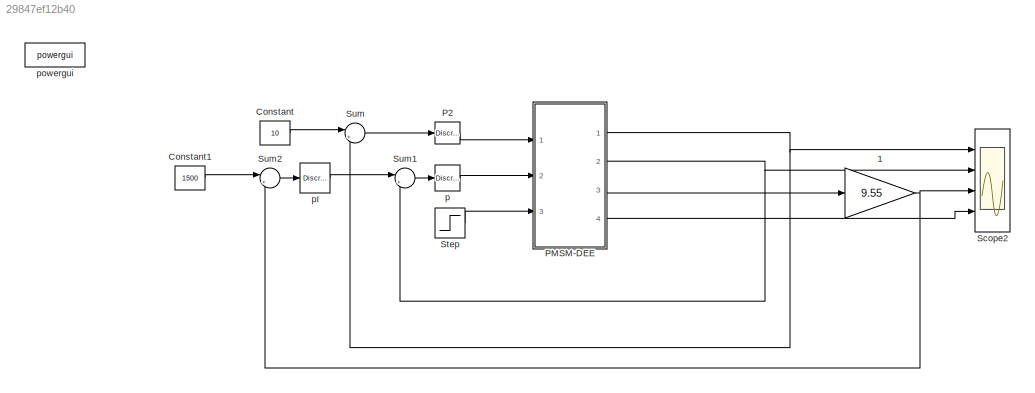
MODEL slx_29847ef12b40
KIND model
BLOCK [Gain] 1
  Gain = 9.55
  OutDataTypeStr = Inherit: Inherit via internal rule
  ParamDataTypeStr = Inherit: Inherit via internal rule
  SaturateOnIntegerOverflow = off
BLOCK [Constant] Constant
  Value = 10
BLOCK [Constant] Constant1
  Value = 1500
BLOCK [Reference] P2   REF=powerlib_extras/Discrete 
Control Blocks/Discrete
PI Controller
  Init = 0
  Ki = 7187.5
  Kp = 21.25
  Par_Limits = [250 -250]
  Ports = [1, 1]
  SourceBlock = powerlib_extras/Discrete \nControl Blocks/Discrete\nPI Controller
  SourceType = Discrete PI Controller
  Ts = 50e-6
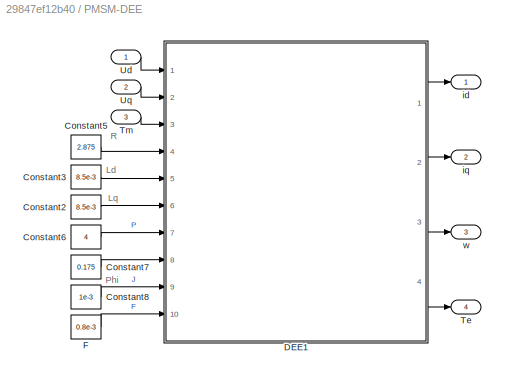
BLOCK [SubSystem] PMSM-DEE
  Ports = [3, 4]
  RequestExecContextInheritance = off
BLOCK [Constant] PMSM-DEE/Constant2
  Value = 8.5e-3
BLOCK [Constant] PMSM-DEE/Constant3
  Value = 8.5e-3
BLOCK [Constant] PMSM-DEE/Constant5
  Value = 2.875
BLOCK [Constant] PMSM-DEE/Constant6
  Value = 4
BLOCK [Constant] PMSM-DEE/Constant7
  Value = 0.175
BLOCK [Constant] PMSM-DEE/Constant8
  Value = 1e-3
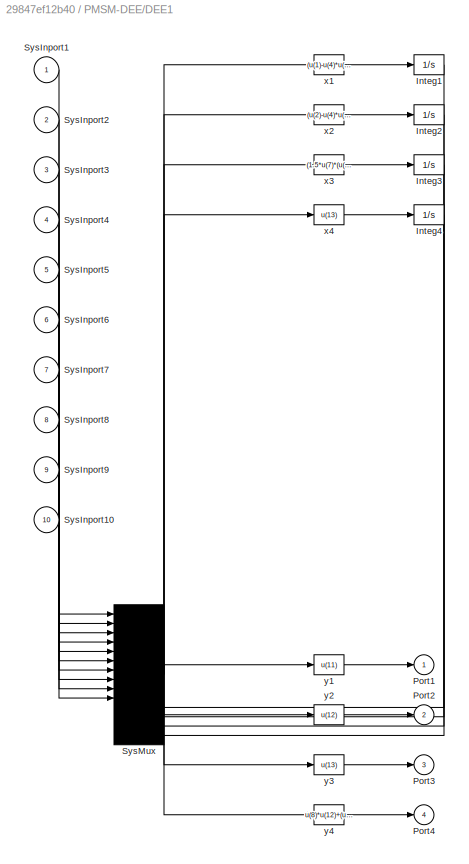
BLOCK [SubSystem] PMSM-DEE/DEE1
  OpenFcn = diffeqed
  Ports = [10, 4]
  RequestExecContextInheritance = off
BLOCK [Integrator] PMSM-DEE/DEE1/Integ1
  Ports = [1, 1]
BLOCK [Integrator] PMSM-DEE/DEE1/Integ2
  Ports = [1, 1]
BLOCK [Integrator] PMSM-DEE/DEE1/Integ3
  Ports = [1, 1]
BLOCK [Integrator] PMSM-DEE/DEE1/Integ4
  Ports = [1, 1]
BLOCK [Outport] PMSM-DEE/DEE1/Port1
  IconDisplay = Port number
BLOCK [Outport] PMSM-DEE/DEE1/Port2
  IconDisplay = Port number
  Port = 2
BLOCK [Outport] PMSM-DEE/DEE1/Port3
  IconDisplay = Port number
  Port = 3
BLOCK [Outport] PMSM-DEE/DEE1/Port4
  IconDisplay = Port number
  Port = 4
BLOCK [Inport] PMSM-DEE/DEE1/SysInport1
  IconDisplay = Port number
BLOCK [Inport] PMSM-DEE/DEE1/SysInport10
  IconDisplay = Port number
  Port = 10
BLOCK [Inport] PMSM-DEE/DEE1/SysInport2
  IconDisplay = Port number
  Port = 2
BLOCK [Inport] PMSM-DEE/DEE1/SysInport3
  IconDisplay = Port number
  Port = 3
BLOCK [Inport] PMSM-DEE/DEE1/SysInport4
  IconDisplay = Port number
  Port = 4
BLOCK [Inport] PMSM-DEE/DEE1/SysInport5
  IconDisplay = Port number
  Port = 5
BLOCK [Inport] PMSM-DEE/DEE1/SysInport6
  IconDisplay = Port number
  Port = 6
BLOCK [Inport] PMSM-DEE/DEE1/SysInport7
  IconDisplay = Port number
  Port = 7
BLOCK [Inport] PMSM-DEE/DEE1/SysInport8
  IconDisplay = Port number
  Port = 8
BLOCK [Inport] PMSM-DEE/DEE1/SysInport9
  IconDisplay = Port number
  Port = 9
BLOCK [Mux] PMSM-DEE/DEE1/SysMux
  Inputs = 14
  Ports = [14, 1]
BLOCK [Fcn] PMSM-DEE/DEE1/x1
  Expr = (u(1)-u(4)*u(11)+u(6)*u(7)*u(13)*u(12))/u(5)
BLOCK [Fcn] PMSM-DEE/DEE1/x2
  Expr = (u(2)-u(4)*u(12)-u(5)*u(7)*u(13)*u(11)-u(8)*u(7)*u(13))/u(6)
BLOCK [Fcn] PMSM-DEE/DEE1/x3
  Expr = (1.5*u(7)*(u(8)*u(12)+(u(5)-u(6))*u(11)*u(12))-u(10)*u(13)-u(3))/u(9)
BLOCK [Fcn] PMSM-DEE/DEE1/x4
  Expr = u(13)
BLOCK [Fcn] PMSM-DEE/DEE1/y1
  Expr = u(11)
BLOCK [Fcn] PMSM-DEE/DEE1/y2
  Expr = u(12)
BLOCK [Fcn] PMSM-DEE/DEE1/y3
  Expr = u(13)
BLOCK [Fcn] PMSM-DEE/DEE1/y4
  Expr = u(8)*u(12)+(u(5)-u(6))*u(11)*u(12)
BLOCK [Constant] PMSM-DEE/F
  Value = 0.8e-3
BLOCK [Outport] PMSM-DEE/Te
  IconDisplay = Port number
  Port = 4
BLOCK [Inport] PMSM-DEE/Tm
  IconDisplay = Port number
  Port = 3
BLOCK [Inport] PMSM-DEE/Ud
  IconDisplay = Port number
BLOCK [Inport] PMSM-DEE/Uq
  IconDisplay = Port number
  Port = 2
BLOCK [Outport] PMSM-DEE/id
  IconDisplay = Port number
BLOCK [Outport] PMSM-DEE/iq
  IconDisplay = Port number
  Port = 2
BLOCK [Outport] PMSM-DEE/w
  IconDisplay = Port number
  Port = 3
BLOCK [Scope] Scope2
  DataFormat = StructureWithTime
  Floating = off
  LimitDataPoints = off
  NumInputPorts = 4
  Ports = [4]
  SampleTime = 0
  ShowLegends = off
  YMax = 1685~5~5~5
  YMin = 1575~-5~-5~-5
BLOCK [Step] Step
  After = 10
  SampleTime = 0
  Time = 0.1
BLOCK [Sum] Sum
  IconShape = round
  InputSameDT = off
  Inputs = |+-
  OutDataTypeStr = Inherit: Inherit via internal rule
  Ports = [2, 1]
  SaturateOnIntegerOverflow = off
BLOCK [Sum] Sum1
  IconShape = round
  InputSameDT = off
  Inputs = |+-
  OutDataTypeStr = Inherit: Inherit via internal rule
  Ports = [2, 1]
  SaturateOnIntegerOverflow = off
BLOCK [Sum] Sum2
  IconShape = round
  InputSameDT = off
  Inputs = |+-
  OutDataTypeStr = Inherit: Inherit via internal rule
  Ports = [2, 1]
  SaturateOnIntegerOverflow = off
BLOCK [Reference] p  REF=powerlib_extras/Discrete 
Control Blocks/Discrete
PI Controller
  Init = 0
  Ki = 7187.5
  Kp = 21.25
  Par_Limits = [300 -200]
  Ports = [1, 1]
  SourceBlock = powerlib_extras/Discrete \nControl Blocks/Discrete\nPI Controller
  SourceType = Discrete PI Controller
  Ts = 50e-6
BLOCK [Reference] pI   REF=powerlib_extras/Discrete 
Control Blocks/Discrete
PI Controller
  Init = 0
  Ki = 1
  Kp = 0.06
  Par_Limits = [300 -300]
  Ports = [1, 1]
  SourceBlock = powerlib_extras/Discrete \nControl Blocks/Discrete\nPI Controller
  SourceType = Discrete PI Controller
  Ts = 50e-6
BLOCK [Reference] powergui  REF=powerlib/powergui
  DisableRonSwitches = off
  DisableSnubberDevices = off
  DisableVfSwitches = off
  DisplayEquations = off
  DisplayStyle = 1
  EnableUseOfTLC = off
  ErrMax = 1e-4
  Frange = [0:2:500]
  FreqAxis = off
  FunctionMessages = off
  HookPort = off
  Interpol = off
  Iterations = 50
  MaxFrequency = 1000
  Pbase = 100e6
  Ports = []
  ResistiveCurrentMeasurement = off
  RestoreLinks = warning
  RmsSteady = 1
  SPID = off
  SampleTime = 50e-6
  ShowGrid = off
  SolverType = Tustin/Backward Euler (TBE)
  SourceBlock = powerlib/powergui
  SourceType = PSB option menu block
  StartTime = 0.0
  SwTol = 0
  Ts = 0
  UnitsV = kV
  UnitsW = MW
  UserDataPersistent = on
  Xlog = on
  Ylog = off
  ZoomFFT = off
  cycles = 1
  display = off
  echomessages = off
  frequency = 60
  frequencyindice = 0
  frequencyindicesteady = 1
  fundamental = 60
  methode = off
  save = off
  structure = 0
  variable = ZData
  x0status = blocks
ANNOTATION PMSM-DEE: Ld
ANNOTATION PMSM-DEE: Lq
ANNOTATION PMSM-DEE: Phi
ANNOTATION PMSM-DEE: R
NET 1:1 -> Scope2:3, Sum2:2
LINE Constant1:1 -> Sum2:1
LINE Constant:1 -> Sum:1
LINE P2 :1 -> PMSM-DEE:1
LINE PMSM-DEE/Constant2:1 -> PMSM-DEE/DEE1:6
LINE PMSM-DEE/Constant3:1 -> PMSM-DEE/DEE1:5
LINE PMSM-DEE/Constant5:1 -> PMSM-DEE/DEE1:4
LINE PMSM-DEE/Constant6:1 -> PMSM-DEE/DEE1:7
LINE PMSM-DEE/Constant7:1 -> PMSM-DEE/DEE1:8
LINE PMSM-DEE/Constant8:1 -> PMSM-DEE/DEE1:9
LINE PMSM-DEE/DEE1/Integ1:1 -> PMSM-DEE/DEE1/SysMux:11
LINE PMSM-DEE/DEE1/Integ2:1 -> PMSM-DEE/DEE1/SysMux:12
LINE PMSM-DEE/DEE1/Integ3:1 -> PMSM-DEE/DEE1/SysMux:13
LINE PMSM-DEE/DEE1/Integ4:1 -> PMSM-DEE/DEE1/SysMux:14
LINE PMSM-DEE/DEE1/SysInport10:1 -> PMSM-DEE/DEE1/SysMux:10
LINE PMSM-DEE/DEE1/SysInport1:1 -> PMSM-DEE/DEE1/SysMux:1
LINE PMSM-DEE/DEE1/SysInport2:1 -> PMSM-DEE/DEE1/SysMux:2
LINE PMSM-DEE/DEE1/SysInport3:1 -> PMSM-DEE/DEE1/SysMux:3
LINE PMSM-DEE/DEE1/SysInport4:1 -> PMSM-DEE/DEE1/SysMux:4
LINE PMSM-DEE/DEE1/SysInport5:1 -> PMSM-DEE/DEE1/SysMux:5
LINE PMSM-DEE/DEE1/SysInport6:1 -> PMSM-DEE/DEE1/SysMux:6
LINE PMSM-DEE/DEE1/SysInport7:1 -> PMSM-DEE/DEE1/SysMux:7
LINE PMSM-DEE/DEE1/SysInport8:1 -> PMSM-DEE/DEE1/SysMux:8
LINE PMSM-DEE/DEE1/SysInport9:1 -> PMSM-DEE/DEE1/SysMux:9
NET PMSM-DEE/DEE1/SysMux:1 -> PMSM-DEE/DEE1/x1:1, PMSM-DEE/DEE1/x2:1, PMSM-DEE/DEE1/x3:1, PMSM-DEE/DEE1/x4:1, PMSM-DEE/DEE1/y1:1, PMSM-DEE/DEE1/y2:1, PMSM-DEE/DEE1/y3:1, PMSM-DEE/DEE1/y4:1
LINE PMSM-DEE/DEE1/x1:1 -> PMSM-DEE/DEE1/Integ1:1
LINE PMSM-DEE/DEE1/x2:1 -> PMSM-DEE/DEE1/Integ2:1
LINE PMSM-DEE/DEE1/x3:1 -> PMSM-DEE/DEE1/Integ3:1
LINE PMSM-DEE/DEE1/x4:1 -> PMSM-DEE/DEE1/Integ4:1
LINE PMSM-DEE/DEE1/y1:1 -> PMSM-DEE/DEE1/Port1:1
LINE PMSM-DEE/DEE1/y2:1 -> PMSM-DEE/DEE1/Port2:1
LINE PMSM-DEE/DEE1/y3:1 -> PMSM-DEE/DEE1/Port3:1
LINE PMSM-DEE/DEE1/y4:1 -> PMSM-DEE/DEE1/Port4:1
LINE PMSM-DEE/DEE1:1 -> PMSM-DEE/id:1
LINE PMSM-DEE/DEE1:2 -> PMSM-DEE/iq:1
LINE PMSM-DEE/DEE1:3 -> PMSM-DEE/w:1
LINE PMSM-DEE/DEE1:4 -> PMSM-DEE/Te:1
LINE PMSM-DEE/F:1 -> PMSM-DEE/DEE1:10
LINE PMSM-DEE/Tm:1 -> PMSM-DEE/DEE1:3
LINE PMSM-DEE/Ud:1 -> PMSM-DEE/DEE1:1
LINE PMSM-DEE/Uq:1 -> PMSM-DEE/DEE1:2
NET PMSM-DEE:1 -> Scope2:1, Sum:2
NET PMSM-DEE:2 -> Scope2:2, Sum1:2
LINE PMSM-DEE:3 -> 1:1
LINE PMSM-DEE:4 -> Scope2:4
LINE Step:1 -> PMSM-DEE:3
LINE Sum1:1 -> p:1
LINE Sum2:1 -> pI :1
LINE Sum:1 -> P2 :1
LINE p:1 -> PMSM-DEE:2
LINE pI :1 -> Sum1:1
note: NET lines group one-source signal fan-out (src -> all destinations, sorted); 1:1 wires keep LINE
